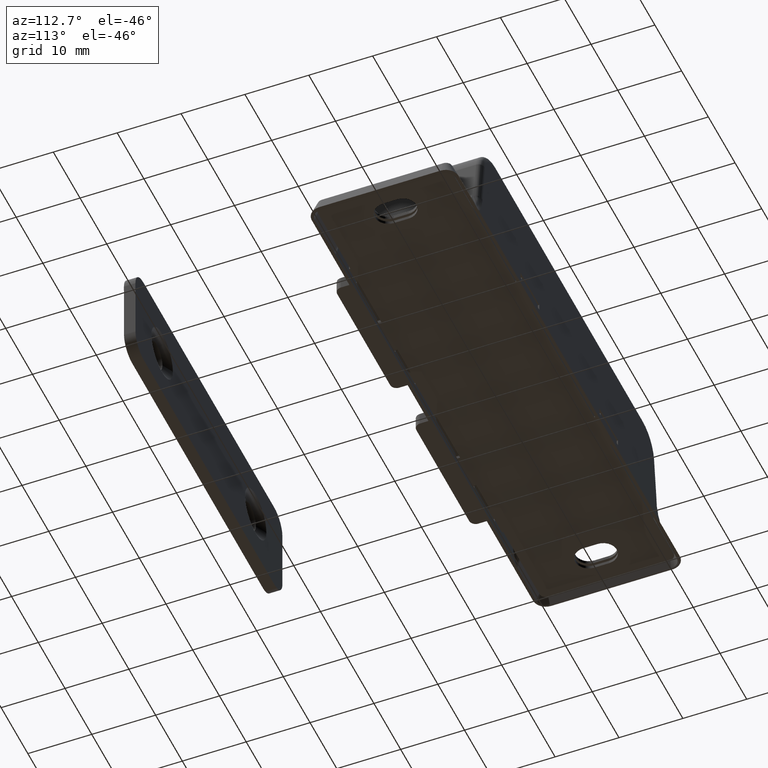
[diagram: clean part render]
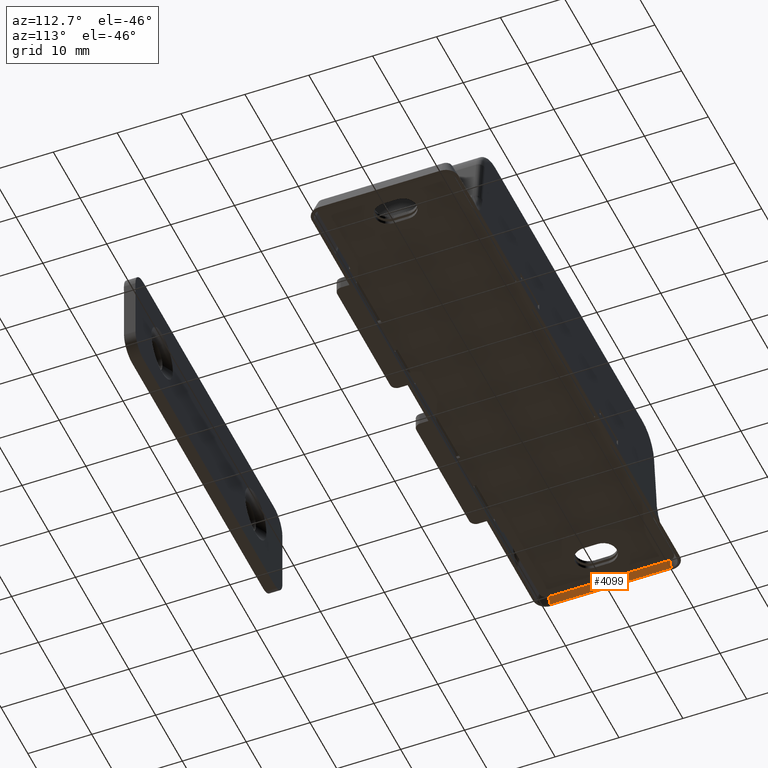
[diagram: same view with one face highlighted and labeled with its STEP entity id]
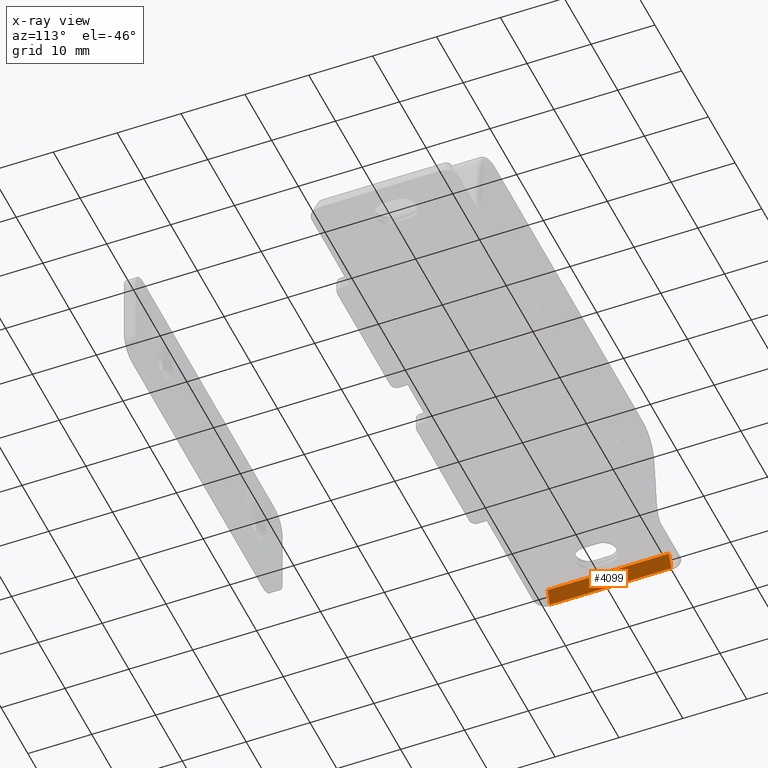
[diagram: x-ray of the same camera — body ghosted, the highlighted face saturated]
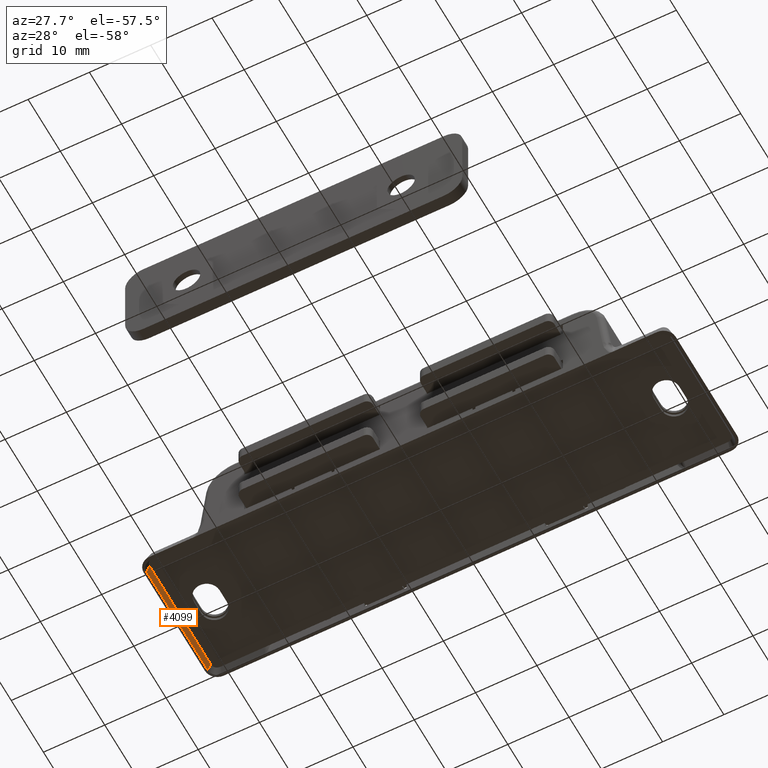
[diagram: same view with one face highlighted and labeled with its STEP entity id]
A machine part, auxiliary view. The second image highlights one B-rep face of the part: STEP entity #4099.
The next image is the same camera in x-ray: the body ghosted, the highlighted face saturated — about 0% of this face is hidden behind the body in this view.
A second angle (auxiliary view) of the same face is appended — the face is thin or edge-on in the first view.
In plain terms, the highlighted planar face has unit normal (-0.9285, 0, 0.3714).
Its self-contained STEP definition (entity closure, byte-faithful):
#397=FACE_OUTER_BOUND('',#642,.T.);
#642=EDGE_LOOP('',(#3096,#3097,#3098,#3099));
#970=LINE('',#6653,#1406);
#981=LINE('',#6732,#1417);
#982=LINE('',#6736,#1418);
#983=LINE('',#6737,#1419);
#1406=VECTOR('',#5034,19.);
#1417=VECTOR('',#5065,2.35406592279454);
#1418=VECTOR('',#5070,2.35406592279472);
#1419=VECTOR('',#5071,19.);
#1843=VERTEX_POINT('',#6650);
#1844=VERTEX_POINT('',#6652);
#1862=VERTEX_POINT('',#6731);
#1863=VERTEX_POINT('',#6735);
#2302=EDGE_CURVE('',#1843,#1844,#970,.F.);
#2324=EDGE_CURVE('',#1862,#1844,#981,.T.);
#2326=EDGE_CURVE('',#1863,#1843,#982,.T.);
#2327=EDGE_CURVE('',#1863,#1862,#983,.T.);
#3096=ORIENTED_EDGE('',*,*,#2326,.F.);
#3097=ORIENTED_EDGE('',*,*,#2327,.T.);
#3098=ORIENTED_EDGE('',*,*,#2324,.T.);
#3099=ORIENTED_EDGE('',*,*,#2302,.F.);
#3925=PLANE('',#4401);
#4099=ADVANCED_FACE('',(#397),#3925,.F.);
#4401=AXIS2_PLACEMENT_3D('',#6734,#5068,#5069);
#5034=DIRECTION('',(0.,-1.,0.));
#5065=DIRECTION('',(0.371390676361882,0.,0.928476690882148));
#5068=DIRECTION('center_axis',(-0.928476690885303,0.,0.371390676353995));
#5069=DIRECTION('ref_axis',(0.371390676353997,0.,0.928476690885302));
#5070=DIRECTION('',(0.37139067636207,0.,0.928476690882073));
#5071=DIRECTION('',(0.,1.,0.));
#6650=CARTESIAN_POINT('',(-42.0614835192896,-9.5,1.99999999993804));
#6652=CARTESIAN_POINT('',(-42.0614835192901,9.5,1.99999999993804));
#6653=CARTESIAN_POINT('',(-42.0614835192864,0.,1.99999999993804));
#6731=CARTESIAN_POINT('',(-42.9357616545572,9.5,-0.18569533817667));
#6732=CARTESIAN_POINT('',(-42.9357616545573,9.5,-0.185695338176997));
#6734=CARTESIAN_POINT('Origin',(-42.4357616545574,0.,1.06430466176036));
#6735=CARTESIAN_POINT('',(-42.9357616545572,-9.5,-0.18569533817667));
#6736=CARTESIAN_POINT('',(-42.9357616545573,-9.5,-0.185695338176997));
#6737=CARTESIAN_POINT('',(-42.9357616545573,0.,-0.185695338176997));